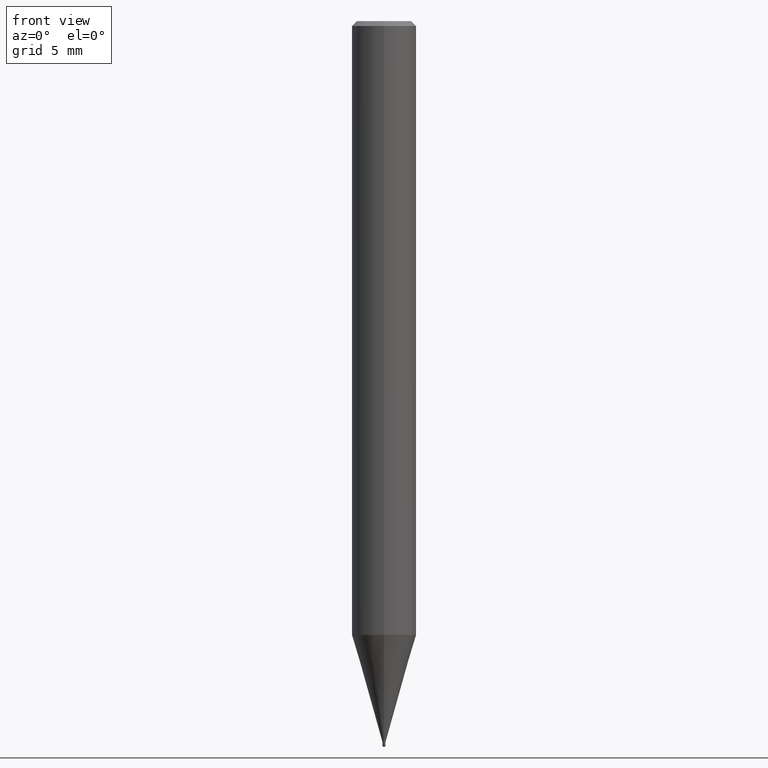
[diagram: clean part render]
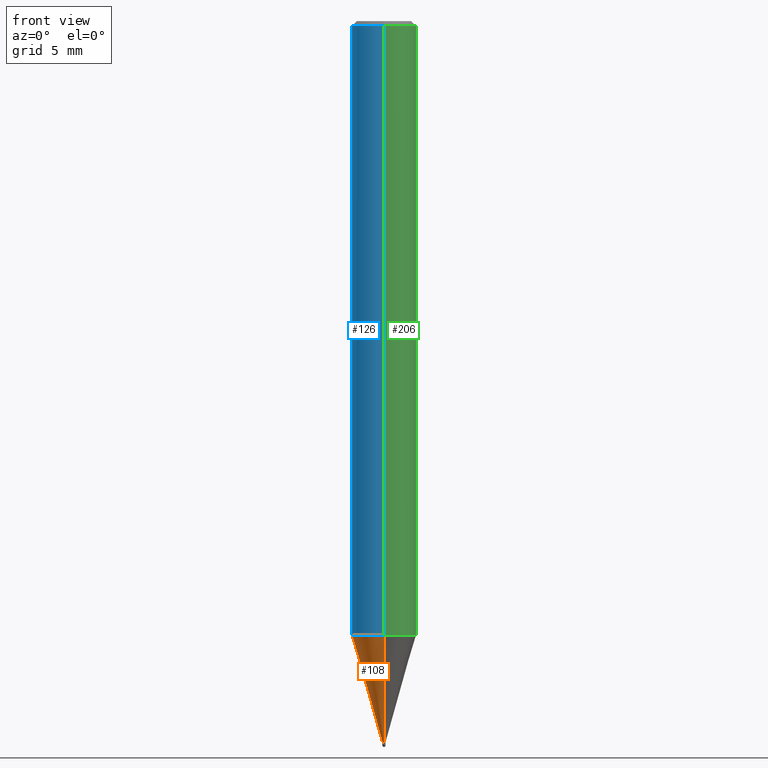
[diagram: same view with three faces highlighted in distinct colors, each labeled with its STEP entity id]
A machine part, front view with three faces highlighted in distinct colors.
Their STEP definitions:

[orange] entity #108 — the highlighted conical surface has half-angle 15.999 deg.
#108=ADVANCED_FACE('',(#249),#250,.T.);
#118=EDGE_CURVE('',#142,#208,#261,.T.);
#124=VERTEX_POINT('',#267);
#142=VERTEX_POINT('',#287);
#160=EDGE_CURVE('',#124,#142,#307,.T.);
#166=EDGE_CURVE('',#186,#208,#316,.T.);
#184=EDGE_CURVE('',#186,#124,#335,.T.);
#186=VERTEX_POINT('',#337);
#208=VERTEX_POINT('',#364);
#249=FACE_OUTER_BOUND('',#405,.T.);
#250=CONICAL_SURFACE('',#406,1.04745,0.279233718115795);
#261=LINE('',#421,#422);
#267=CARTESIAN_POINT('',(2.44915147732706E-016,-1.99995,-38.056));
#287=CARTESIAN_POINT('',(0.0,1.99995,-38.056));
#307=CIRCLE('',#478,1.99995);
#316=CIRCLE('',#488,0.09495);
#335=LINE('',#515,#516);
#337=CARTESIAN_POINT('',(1.16276373295435E-017,-0.09495,-44.7));
#364=CARTESIAN_POINT('',(0.0,0.09495,-44.7));
#405=EDGE_LOOP('',(#573,#574,#575,#576));
#406=AXIS2_PLACEMENT_3D('',#577,#578,#579);
#421=CARTESIAN_POINT('',(-1.28271392531125E-016,1.04745,-41.378));
#422=VECTOR('',#592,1.0);
#478=AXIS2_PLACEMENT_3D('',#643,#644,#645);
#488=AXIS2_PLACEMENT_3D('',#662,#663,#664);
#515=CARTESIAN_POINT('',(1.28271392531125E-016,-1.04745,-41.378));
#516=VECTOR('',#682,1.0);
#573=ORIENTED_EDGE('',*,*,#118,.T.);
#574=ORIENTED_EDGE('',*,*,#166,.F.);
#575=ORIENTED_EDGE('',*,*,#184,.T.);
#576=ORIENTED_EDGE('',*,*,#160,.T.);
#577=CARTESIAN_POINT('',(0.0,0.0,-41.378));
#578=DIRECTION('',(-0.0,-0.0,1.0));
#579=DIRECTION('',(0.0,1.0,0.0));
#592=DIRECTION('',(3.3752493554022E-017,-0.275619128127744,-0.961266922457078));
#643=CARTESIAN_POINT('',(0.0,0.0,-38.056));
#644=DIRECTION('',(0.0,0.0,-1.0));
#645=DIRECTION('',(0.0,1.0,0.0));
#662=CARTESIAN_POINT('',(0.0,0.0,-44.7));
#663=DIRECTION('',(0.0,0.0,-1.0));
#664=DIRECTION('',(0.0,1.0,0.0));
#682=DIRECTION('',(3.3752493554022E-017,-0.275619128127744,0.961266922457078));

[blue] entity #126 — the highlighted cylindrical surface (edge-blend (fillet) strip) has radius 2 mm, axis along (-0, -0, 1).
#94=VERTEX_POINT('',#235);
#98=VERTEX_POINT('',#239);
#114=EDGE_CURVE('',#140,#172,#257,.T.);
#126=ADVANCED_FACE('',(#269),#270,.T.);
#138=EDGE_CURVE('',#94,#172,#283,.T.);
#140=VERTEX_POINT('',#285);
#156=EDGE_CURVE('',#94,#98,#302,.T.);
#172=VERTEX_POINT('',#322);
#188=EDGE_CURVE('',#98,#140,#339,.T.);
#235=CARTESIAN_POINT('',(2.44921270764475E-016,-2.0,-38.056));
#239=CARTESIAN_POINT('',(2.44921270764475E-016,-2.0,-0.299999999999997));
#257=LINE('',#415,#416);
#269=FACE_OUTER_BOUND('',#430,.T.);
#270=CYLINDRICAL_SURFACE('',#431,2.0);
#283=CIRCLE('',#449,2.0);
#285=CARTESIAN_POINT('',(0.0,2.0,-0.299999999999997));
#302=LINE('',#471,#472);
#322=CARTESIAN_POINT('',(0.0,2.0,-38.056));
#339=CIRCLE('',#521,2.0);
#415=CARTESIAN_POINT('',(-2.44921270764475E-016,2.0,-19.178));
#416=VECTOR('',#591,1.0);
#430=EDGE_LOOP('',(#594,#595,#596,#597));
#431=AXIS2_PLACEMENT_3D('',#598,#599,#600);
#449=AXIS2_PLACEMENT_3D('',#615,#616,#617);
#471=CARTESIAN_POINT('',(2.44921270764475E-016,-2.0,-19.178));
#472=VECTOR('',#636,1.0);
#521=AXIS2_PLACEMENT_3D('',#683,#684,#685);
#591=DIRECTION('',(0.0,0.0,-1.0));
#594=ORIENTED_EDGE('',*,*,#114,.T.);
#595=ORIENTED_EDGE('',*,*,#138,.F.);
#596=ORIENTED_EDGE('',*,*,#156,.T.);
#597=ORIENTED_EDGE('',*,*,#188,.T.);
#598=CARTESIAN_POINT('',(0.0,0.0,-19.178));
#599=DIRECTION('',(-0.0,-0.0,1.0));
#600=DIRECTION('',(0.0,1.0,0.0));
#615=CARTESIAN_POINT('',(0.0,0.0,-38.056));
#616=DIRECTION('',(0.0,0.0,-1.0));
#617=DIRECTION('',(0.0,1.0,0.0));
#636=DIRECTION('',(-0.0,-0.0,1.0));
#683=CARTESIAN_POINT('',(0.0,0.0,-0.299999999999997));
#684=DIRECTION('',(0.0,0.0,-1.0));
#685=DIRECTION('',(0.0,1.0,0.0));

[green] entity #206 — the highlighted cylindrical surface (edge-blend (fillet) strip) has radius 2 mm, axis along (-0, -0, 1).
#94=VERTEX_POINT('',#235);
#96=EDGE_CURVE('',#140,#98,#237,.T.);
#98=VERTEX_POINT('',#239);
#114=EDGE_CURVE('',#140,#172,#257,.T.);
#140=VERTEX_POINT('',#285);
#156=EDGE_CURVE('',#94,#98,#302,.T.);
#172=VERTEX_POINT('',#322);
#194=EDGE_CURVE('',#172,#94,#347,.T.);
#206=ADVANCED_FACE('',(#361),#362,.T.);
#235=CARTESIAN_POINT('',(2.44921270764475E-016,-2.0,-38.056));
#237=CIRCLE('',#388,2.0);
#239=CARTESIAN_POINT('',(2.44921270764475E-016,-2.0,-0.299999999999997));
#257=LINE('',#415,#416);
#285=CARTESIAN_POINT('',(0.0,2.0,-0.299999999999997));
#302=LINE('',#471,#472);
#322=CARTESIAN_POINT('',(0.0,2.0,-38.056));
#347=CIRCLE('',#530,2.0);
#361=FACE_OUTER_BOUND('',#546,.T.);
#362=CYLINDRICAL_SURFACE('',#547,2.0);
#388=AXIS2_PLACEMENT_3D('',#559,#560,#561);
#415=CARTESIAN_POINT('',(-2.44921270764475E-016,2.0,-19.178));
#416=VECTOR('',#591,1.0);
#471=CARTESIAN_POINT('',(2.44921270764475E-016,-2.0,-19.178));
#472=VECTOR('',#636,1.0);
#530=AXIS2_PLACEMENT_3D('',#700,#701,#702);
#546=EDGE_LOOP('',(#719,#720,#721,#722));
#547=AXIS2_PLACEMENT_3D('',#723,#724,#725);
#559=CARTESIAN_POINT('',(0.0,0.0,-0.299999999999997));
#560=DIRECTION('',(0.0,0.0,-1.0));
#561=DIRECTION('',(0.0,1.0,0.0));
#591=DIRECTION('',(0.0,0.0,-1.0));
#636=DIRECTION('',(-0.0,-0.0,1.0));
#700=CARTESIAN_POINT('',(0.0,0.0,-38.056));
#701=DIRECTION('',(0.0,0.0,-1.0));
#702=DIRECTION('',(0.0,1.0,0.0));
#719=ORIENTED_EDGE('',*,*,#114,.F.);
#720=ORIENTED_EDGE('',*,*,#96,.T.);
#721=ORIENTED_EDGE('',*,*,#156,.F.);
#722=ORIENTED_EDGE('',*,*,#194,.F.);
#723=CARTESIAN_POINT('',(0.0,0.0,-19.178));
#724=DIRECTION('',(-0.0,-0.0,1.0));
#725=DIRECTION('',(0.0,1.0,0.0));